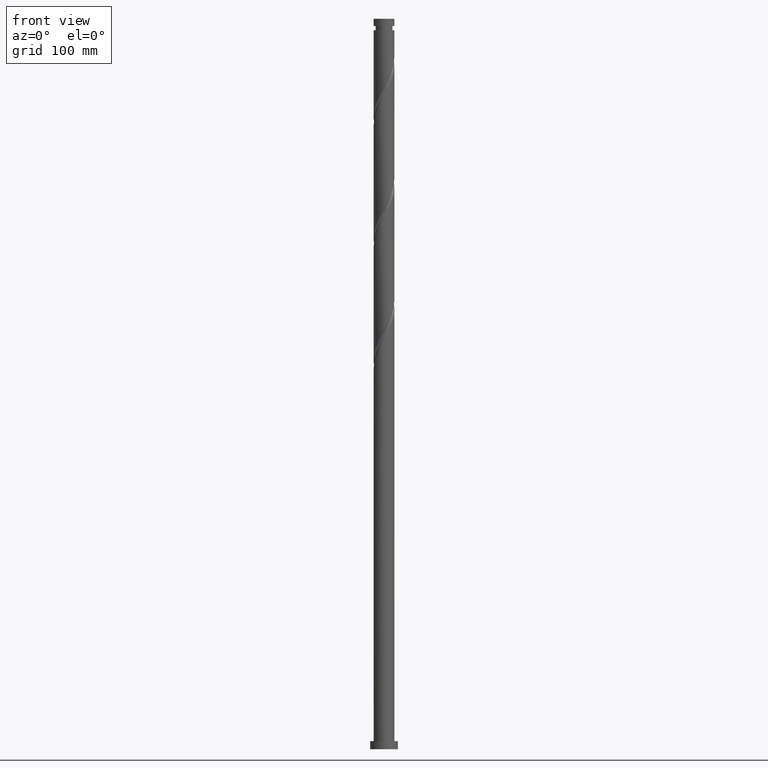
[diagram: clean part render]
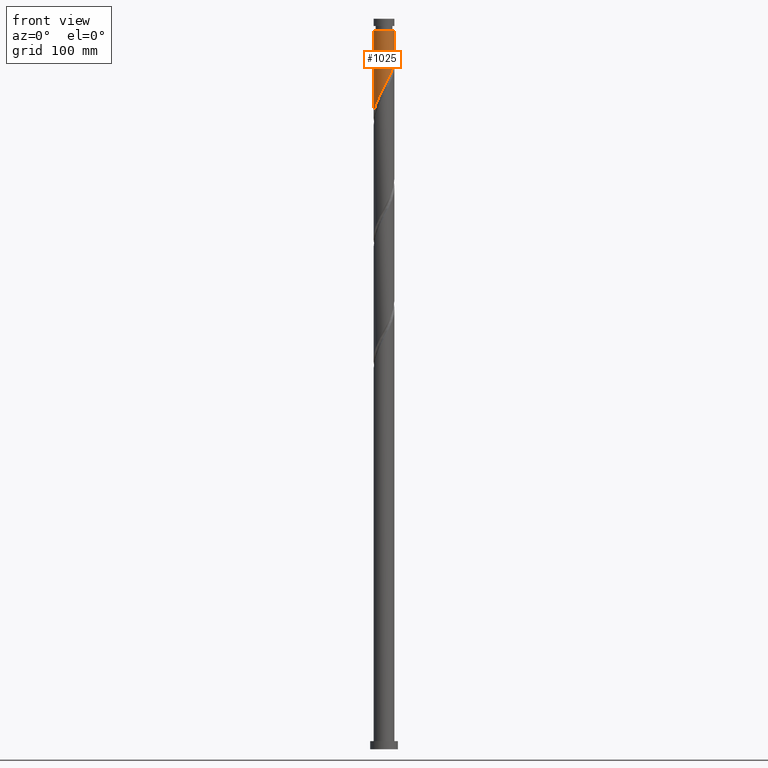
[diagram: same view with one face highlighted and labeled with its STEP entity id]
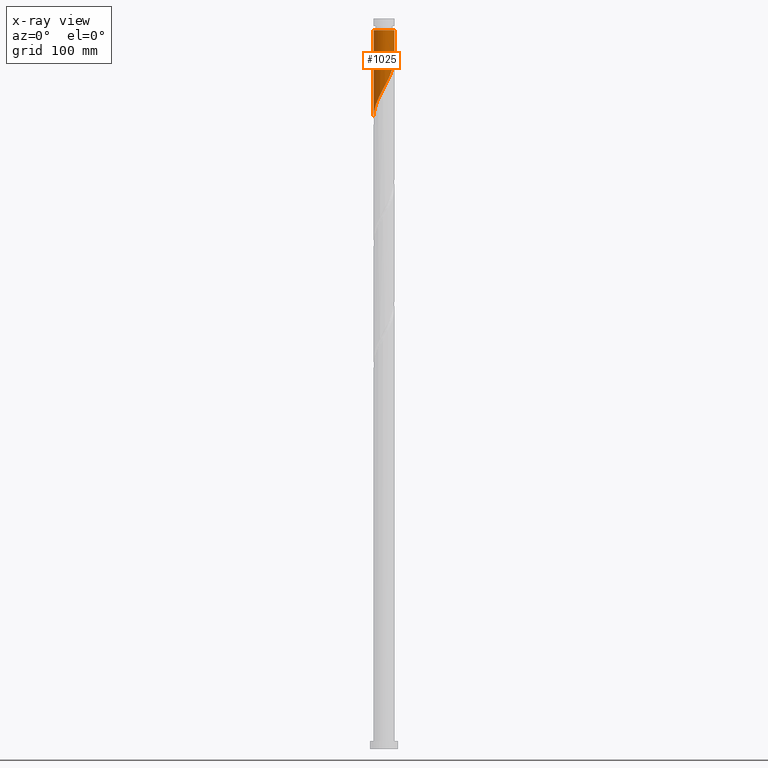
[diagram: x-ray of the same camera — body ghosted, the highlighted face saturated]
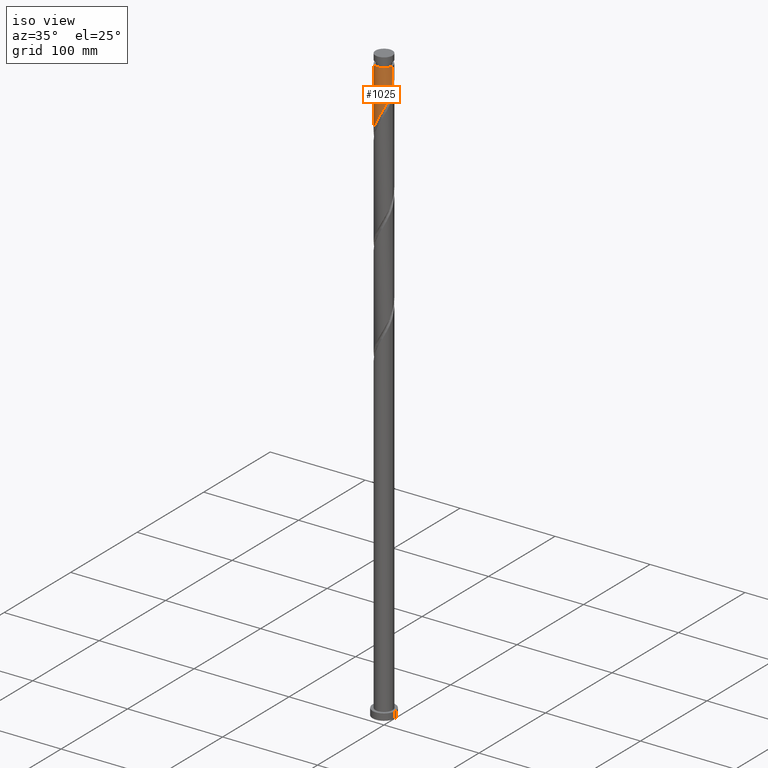
[diagram: same view with one face highlighted and labeled with its STEP entity id]
A machine part, front view. The second image highlights one B-rep face of the part: STEP entity #1025.
The next image is the same camera in x-ray: the body ghosted, the highlighted face saturated — about 0% of this face is hidden behind the body in this view.
A second angle (iso view) of the same face is appended — the face is thin or edge-on in the first view.
In plain terms, the highlighted cylindrical surface (edge-blend (fillet) strip) has radius 9 mm, axis along (-0, -0, -1).
Its self-contained STEP definition (entity closure, byte-faithful):
#3 = VECTOR ( 'NONE', #1071, 1000.000000000000000 ) ;
#51 = CARTESIAN_POINT ( 'NONE',  ( 6.584173963111345174, -6.192266457575206218, 584.6547325510005066 ) ) ;
#99 = CARTESIAN_POINT ( 'NONE',  ( -8.117816950864535031, -3.886006684535740163, 552.2282619627652593 ) ) ;
#111 = CARTESIAN_POINT ( 'NONE',  ( -4.154035934354939563, -8.027421510934395599, 563.0370854921767432 ) ) ;
#121 = DIRECTION ( 'NONE',  ( -0.000000000000000000, -0.000000000000000000, -1.000000000000000000 ) ) ;
#122 = CARTESIAN_POINT ( 'NONE',  ( 9.000000000000001776, 1.102182119232617911E-15, 630.0000000000000000 ) ) ;
#132 = CARTESIAN_POINT ( 'NONE',  ( -8.973426399605228809, -0.6910995954766550042, 546.0517913745298983 ) ) ;
#251 = CARTESIAN_POINT ( 'NONE',  ( 4.618447317582850431, -7.724632313237429493, 580.0223796098241564 ) ) ;
#260 = CARTESIAN_POINT ( 'NONE',  ( -6.165851340533016867, -6.556087037741892054, 558.4047325510006203 ) ) ;
#270 = CARTESIAN_POINT ( 'NONE',  ( -7.265543836342422068, -5.311484986534998676, 555.3164972568828262 ) ) ;
#277 = CARTESIAN_POINT ( 'NONE',  ( -5.558340410535744347, -7.127437305141985924, 559.9488501980595174 ) ) ;
#289 = CARTESIAN_POINT ( 'NONE',  ( 0.6940603345042588579, -9.011869445913658794, 572.3017913745298983 ) ) ;
#300 = CARTESIAN_POINT ( 'NONE',  ( -2.608270746646625504, -8.654041505002840751, 566.1253207862947647 ) ) ;
#354 = LINE ( 'NONE', #1033, #3 ) ;
#410 = CARTESIAN_POINT ( 'NONE',  ( 5.334239913606436012, -7.296670144813479197, 581.5664972568828262 ) ) ;
#431 = ORIENTED_EDGE ( 'NONE', *, *, #1467, .F. ) ;
#436 = CARTESIAN_POINT ( 'NONE',  ( -4.856188172445342843, -7.577429408038192982, 561.4929678451184145 ) ) ;
#469 = CARTESIAN_POINT ( 'NONE',  ( -7.757725402154549421, -4.638233202728205384, 553.7723796098240427 ) ) ;
#480 = CARTESIAN_POINT ( 'NONE',  ( -0.1398118462164825715, -8.998913970455413747, 570.7576737274712286 ) ) ;
#550 = CARTESIAN_POINT ( 'NONE',  ( 5.959206938358891037, -6.744468301194342708, 583.1106149039416096 ) ) ;
#581 = CARTESIAN_POINT ( 'NONE',  ( 8.857785752436246440, -1.798650111072677582, 593.9194384333534344 ) ) ;
#592 = CARTESIAN_POINT ( 'NONE',  ( 7.993177945963301667, -4.136315549394891100, 589.2870854921770842 ) ) ;
#604 = VECTOR ( 'NONE', #1333, 1000.000000000000000 ) ;
#737 = CARTESIAN_POINT ( 'NONE',  ( 9.000000000000003553, -1.553629317144901845E-15, 597.2676472080473786 ) ) ;
#747 = CARTESIAN_POINT ( 'NONE',  ( 8.947625980237367216, -0.9695304625339699056, 595.4635560804123315 ) ) ;
#766 = CARTESIAN_POINT ( 'NONE',  ( -0.9736840269372201151, -8.985958494997161594, 569.2135560804121042 ) ) ;
#777 = CARTESIAN_POINT ( 'NONE',  ( -8.909386591171969627, -1.522610004948563578, 547.5959090215885681 ) ) ;
#790 = CARTESIAN_POINT ( 'NONE',  ( -8.477908499574517975, -3.133780166343278939, 550.6841443157065896 ) ) ;
#850 = EDGE_CURVE ( 'NONE', #986, #1069, #2024, .T. ) ;
#856 = EDGE_CURVE ( 'NONE', #1069, #1960, #354, .T. ) ;
#948 = EDGE_CURVE ( 'NONE', #1503, #1960, #1943, .T. ) ;
#952 = CARTESIAN_POINT ( 'NONE',  ( 2.338169303687814171, -8.730891991395633767, 575.3900266686475788 ) ) ;
#965 = CARTESIAN_POINT ( 'NONE',  ( -8.693647545373245578, -2.328195085645921036, 549.1400266686475788 ) ) ;
#967 = LINE ( 'NONE', #122, #604 ) ;
#986 = VERTEX_POINT ( 'NONE', #1448 ) ;
#1020 = DIRECTION ( 'NONE',  ( -1.000000000000000000, 0.000000000000000000, 0.000000000000000000 ) ) ;
#1025 = ADVANCED_FACE ( 'NONE', ( #1641 ), #1438, .T. ) ;
#1033 = CARTESIAN_POINT ( 'NONE',  ( -9.000000000000001776, 0.000000000000000000, 630.0000000000000000 ) ) ;
#1064 = AXIS2_PLACEMENT_3D ( 'NONE', #1192, #1859, #1020 ) ;
#1069 = VERTEX_POINT ( 'NONE', #1318 ) ;
#1071 = DIRECTION ( 'NONE',  ( -0.000000000000000000, -0.000000000000000000, -1.000000000000000000 ) ) ;
#1082 = CARTESIAN_POINT ( 'NONE',  ( 9.000000000000000000, -0.4861798531134069457, 596.3637279760346246 ) ) ;
#1122 = CARTESIAN_POINT ( 'NONE',  ( 1.516114819096038735, -8.871380718654645392, 573.8459090215886818 ) ) ;
#1140 = ORIENTED_EDGE ( 'NONE', *, *, #948, .F. ) ;
#1192 = CARTESIAN_POINT ( 'NONE',  ( 0.000000000000000000, 0.000000000000000000, 620.1694384333534344 ) ) ;
#1256 = CARTESIAN_POINT ( 'NONE',  ( 7.609891865148766144, -4.876992562929225450, 587.7429678451180735 ) ) ;
#1274 = CARTESIAN_POINT ( 'NONE',  ( -6.773362270530288498, -5.984736770341791967, 556.8606149039417232 ) ) ;
#1283 = CARTESIAN_POINT ( 'NONE',  ( 0.000000000000000000, 0.000000000000000000, 630.0000000000000000 ) ) ;
#1318 = CARTESIAN_POINT ( 'NONE',  ( -8.999999999999936051, 0.000000000000000000, 620.1694384333534344 ) ) ;
#1333 = DIRECTION ( 'NONE',  ( -0.000000000000000000, -0.000000000000000000, -1.000000000000000000 ) ) ;
#1420 = CARTESIAN_POINT ( 'NONE',  ( 8.617124889607046256, -2.597144323466612725, 592.3753207862948784 ) ) ;
#1438 = CYLINDRICAL_SURFACE ( 'NONE', #1912, 9.000000000000001776 ) ;
#1448 = CARTESIAN_POINT ( 'NONE',  ( 8.999999999999936051, 1.102182119232613967E-15, 620.1694384333534344 ) ) ;
#1460 = CARTESIAN_POINT ( 'NONE',  ( -9.000000000000001776, -0.3460606909891366101, 545.4110529601072130 ) ) ;
#1467 = EDGE_CURVE ( 'NONE', #986, #1503, #967, .T. ) ;
#1503 = VERTEX_POINT ( 'NONE', #2130 ) ;
#1595 = ORIENTED_EDGE ( 'NONE', *, *, #856, .T. ) ;
#1602 = CARTESIAN_POINT ( 'NONE',  ( 8.376464026777838967, -3.395638535860547425, 590.8312031392358676 ) ) ;
#1632 = DIRECTION ( 'NONE',  ( -1.000000000000000000, 0.000000000000000000, 0.000000000000000000 ) ) ;
#1641 = FACE_OUTER_BOUND ( 'NONE', #2096, .T. ) ;
#1701 = ORIENTED_EDGE ( 'NONE', *, *, #850, .T. ) ;
#1794 = CARTESIAN_POINT ( 'NONE',  ( -3.381153340500782090, -8.340731507968618175, 564.5812031392358676 ) ) ;
#1859 = DIRECTION ( 'NONE',  ( -0.000000000000000000, -0.000000000000000000, -1.000000000000000000 ) ) ;
#1895 = CARTESIAN_POINT ( 'NONE',  ( -9.000000000000003553, 1.165221987858676384E-15, 544.7676472080476060 ) ) ;
#1912 = AXIS2_PLACEMENT_3D ( 'NONE', #1283, #121, #1632 ) ;
#1940 = CARTESIAN_POINT ( 'NONE',  ( 3.120412012623539955, -8.441743236528505889, 576.9341443157065896 ) ) ;
#1943 =( BOUNDED_CURVE ( )  B_SPLINE_CURVE ( 2, ( #737, #1082, #747, #581, #1420, #1602, #592, #1256, #2102, #51, #550, #410, #251, #2110, #1940, #952, #1122, #289, #480, #766, #2151, #300, #1794, #111, #436, #277, #260, #1274, #270, #469, #99, #790, #965, #777, #132, #1460, #1999 ),
 .UNSPECIFIED., .F., .T. ) 
 B_SPLINE_CURVE_WITH_KNOTS ( ( 3, 2, 2, 2, 2, 2, 2, 2, 2, 2, 2, 2, 2, 2, 2, 2, 2, 2, 3 ),
 ( 0.3045293573162906609, 0.3088235294117647189, 0.3161764705882352811, 0.3235294117647058987, 0.3308823529411764608, 0.3382352941176470784, 0.3455882352941176405, 0.3529411764705882582, 0.3602941176470588203, 0.3676470588235294379, 0.3750000000000000000, 0.3823529411764705621, 0.3897058823529411797, 0.3970588235294117418, 0.4044117647058823595, 0.4117647058823529216, 0.4191176470588235392, 0.4264705882352941013, 0.4295293573162904943 ),
 .UNSPECIFIED. ) 
 CURVE ( )  GEOMETRIC_REPRESENTATION_ITEM ( )  RATIONAL_B_SPLINE_CURVE ( ( 0.9072066346052993779, 0.9068261157890666890, 0.9090909090909375934, 0.9052128875409690689, 0.9090909090909375934, 0.9052128875409690689, 0.9090909090909375934, 0.9052128875409690689, 0.9090909090909375934, 0.9052128875409690689, 0.9090909090909375934, 0.9052128875409690689, 0.9090909090909375934, 0.9052128875409690689, 0.9090909090909375934, 0.9052128875409690689, 0.9090909090909375934, 0.9052128875409690689, 0.9090909090909375934, 0.9052128875409690689, 0.9090909090909375934, 0.9052128875409690689, 0.9090909090909375934, 0.9052128875409690689, 0.9090909090909375934, 0.9052128875409690689, 0.9090909090909375934, 0.9052128875409690689, 0.9090909090909375934, 0.9052128875409690689, 0.9090909090909375934, 0.9052128875409690689, 0.9090909090909375934, 0.9052128875409690689, 0.9090909090909375934, 0.9074776808428401953, 0.9072066346052996000 ) ) 
 REPRESENTATION_ITEM ( '' )  );
#1960 = VERTEX_POINT ( 'NONE', #1895 ) ;
#1999 = CARTESIAN_POINT ( 'NONE',  ( -9.000000000000003553, 1.165221987858676384E-15, 544.7676472080476060 ) ) ;
#2024 = CIRCLE ( 'NONE', #1064, 8.999999999999936051 ) ;
#2096 = EDGE_LOOP ( 'NONE', ( #431, #1701, #1595, #1140 ) ) ;
#2102 = CARTESIAN_POINT ( 'NONE',  ( 7.097032914130057435, -5.534629510252212725, 586.1988501980592901 ) ) ;
#2110 = CARTESIAN_POINT ( 'NONE',  ( 3.902654721559262629, -8.152594481661374459, 578.4782619627652593 ) ) ;
#2130 = CARTESIAN_POINT ( 'NONE',  ( 9.000000000000003553, -1.553629317144901845E-15, 597.2676472080473786 ) ) ;
#2151 = CARTESIAN_POINT ( 'NONE',  ( -1.790977386791924753, -8.820000000000000284, 567.6694384333536618 ) ) ;